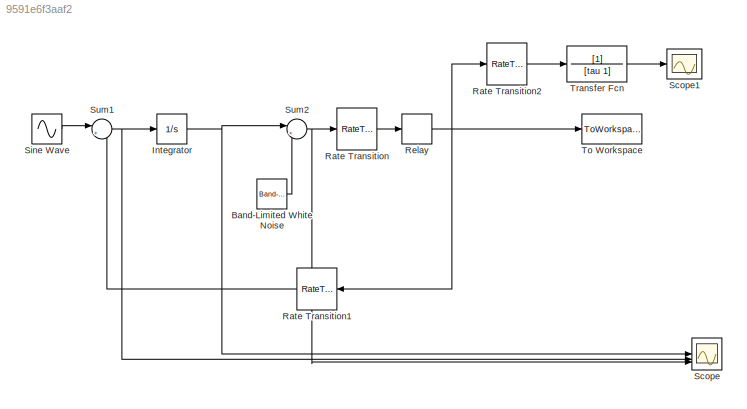
MODEL mdl_9591e6f3aaf2
KIND model
CONFIG AbsTol = auto
CONFIG EnableMultiTasking = on
CONFIG FixedStep = ts
CONFIG MaxStep = auto
CONFIG MinStep = auto
CONFIG RelTol = 1e-3
CONFIG SampleTimeConstraint = Unconstrained
CONFIG SolverName = ode3
CONFIG StartTime = 0.0
CONFIG StopTime = 1-ts
BLOCK [Reference] Band-Limited White Noise  REF=simulink/Sources/Band-Limited
White Noise
  SourceBlock = simulink/Sources/Band-Limited\nWhite Noise
  SourceType = Band-Limited White Noise.
BLOCK [Integrator] Integrator
BLOCK [RateTransition] Rate Transition
BLOCK [RateTransition] Rate Transition1
BLOCK [RateTransition] Rate Transition2
BLOCK [Relay] Relay
  OffOutputValue = -1
  OffSwitchValue = 0
  OnSwitchValue = 0
  SampleTime = 1/fck
BLOCK [Scope] Scope
  Floating = off
  NumInputPorts = 3
  ScopeSpecificationString = C++SS(StrPVP('Location','[5, 49, 1021, 719]'),StrPVP('Open','off'),StrPVP('ZoomMode','xonly'),MxPVP('AxesTitles',54,'struct(''axes1'',''%<SignalLabel>'',''axes2'',''%<SignalLabel>'',''axes3'',''%<SignalLabel>'')'),StrPVP('YMin','-0.0002~-1~-0.00025'),StrPVP('YMax','0.0002~1~0.00025'),StrPVP('DataFormat','StructureWithTime'),StrPVP('LimitDataPoints','off'),StrPVP('Decimation','1'),StrPVP('BlockPara...<+21ch>
BLOCK [Scope] Scope1
  Floating = off
  NumInputPorts = 1
  ScopeSpecificationString = Simulink.scopes.TimeScopeBlockCfg('CurrentConfiguration', extmgr.ConfigurationSet(extmgr.Configuration('Core','General UI',true),extmgr.Configuration('Core','Source UI',true),extmgr.Configuration('Sources','WiredSimulink',true,'DataLoggingVariableName','ScopeData1','DataLoggingSaveFormat','StructureWithTime','DataLoggingDecimation','1','DataLoggingDecimateData',true),extmgr.Configuration('Visuals'...<+1787ch>
BLOCK [Sin] Sine Wave
  Amplitude = 0.5
  Frequency = 2*pi*10
  SampleTime = ts
BLOCK [Sum] Sum1
  Inputs = |+-
BLOCK [Sum] Sum2
  Inputs = |++
BLOCK [ToWorkspace] To Workspace
  MaxDataPoints = fck
  SampleTime = 1/fck
  VariableName = simout
BLOCK [TransferFcn] Transfer Fcn
  Denominator = [tau 1]
LINE Band-Limited White Noise:1 -> Sum2:2
NET Integrator:1 -> Scope:1, Sum2:1
LINE Rate Transition1:1 -> Sum1:2
LINE Rate Transition2:1 -> Transfer Fcn:1
LINE Rate Transition:1 -> Relay:1
NET Relay:1 -> Rate Transition1:1, Rate Transition2:1, To Workspace:1
LINE Sine Wave:1 -> Sum1:1
NET Sum1:1 -> Integrator:1, Scope:2
NET Sum2:1 -> Rate Transition:1, Scope:3
LINE Transfer Fcn:1 -> Scope1:1
note: NET lines group one-source signal fan-out (src -> all destinations, sorted); 1:1 wires keep LINE
